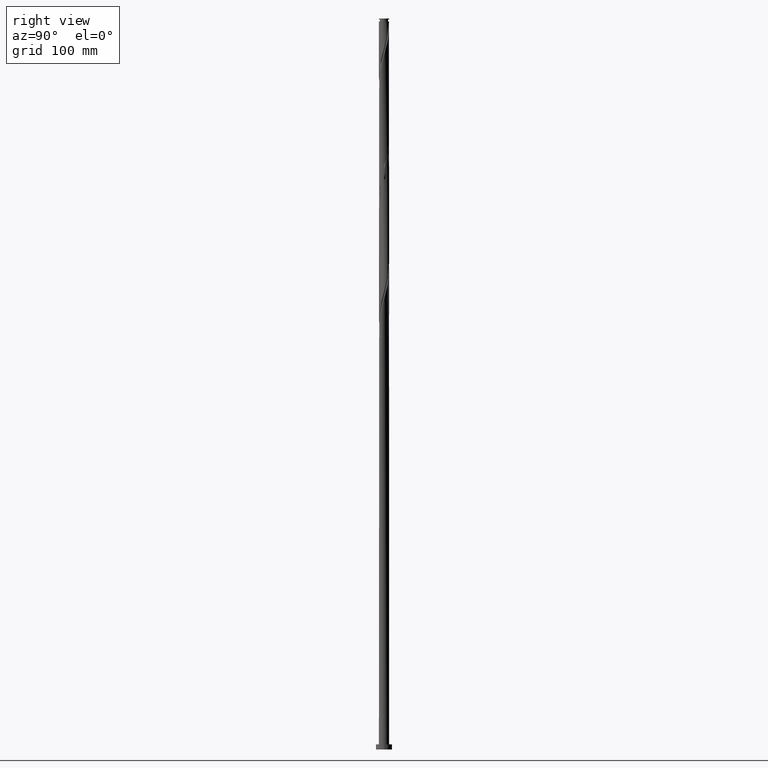
[diagram: clean part render]
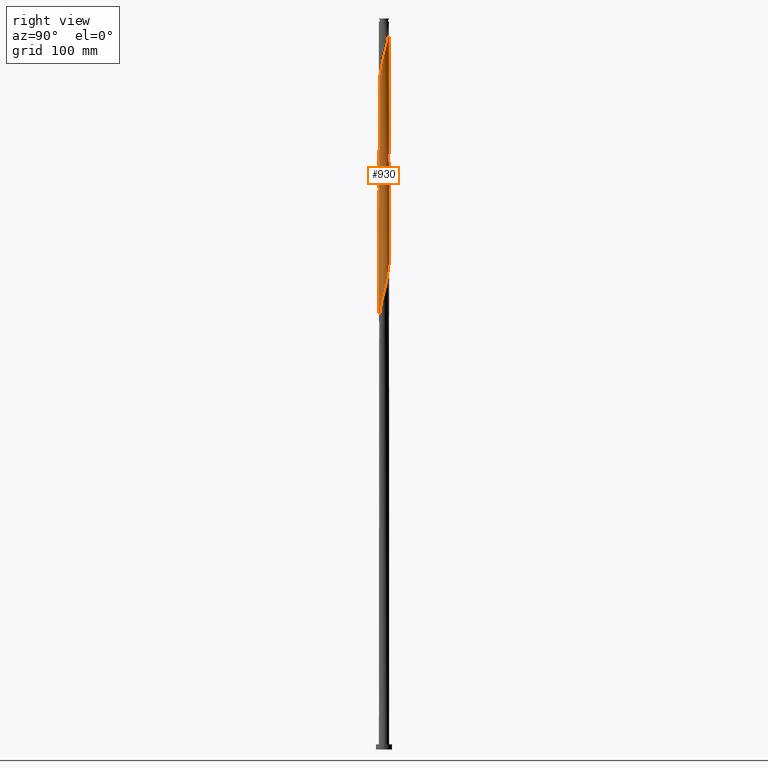
[diagram: same view with one face highlighted and labeled with its STEP entity id]
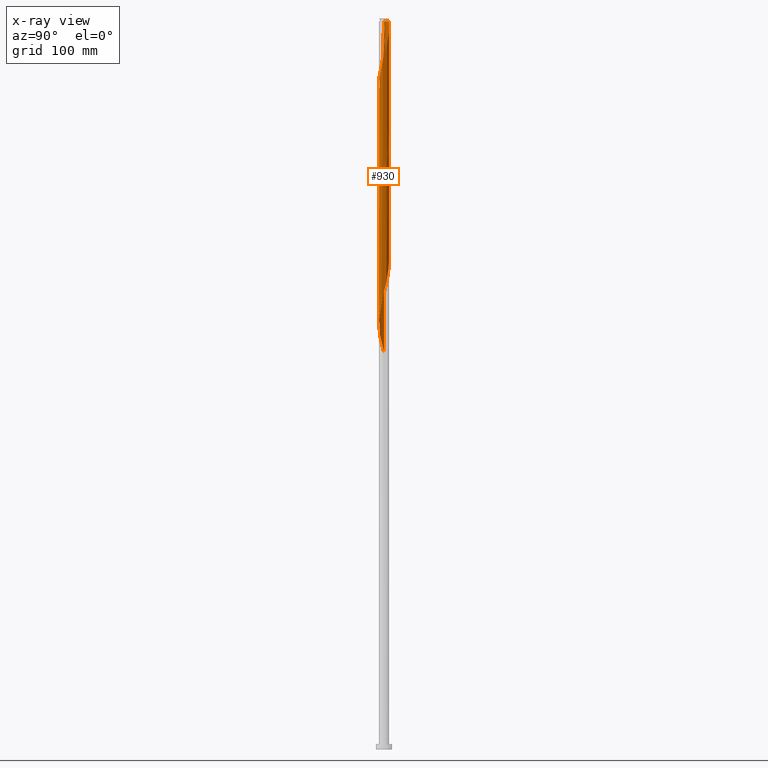
[diagram: x-ray of the same camera — body ghosted, the highlighted face saturated]
A machine part, right view. The second image highlights one B-rep face of the part: STEP entity #930.
The next image is the same camera in x-ray: the body ghosted, the highlighted face saturated — about 0% of this face is hidden behind the body in this view.
In plain terms, the highlighted cylindrical surface (bore or boss wall) has radius 7 mm, axis along (-0, -0, -1).
Its self-contained STEP definition (entity closure, byte-faithful):
#3 = CARTESIAN_POINT ( 'NONE',  ( 0.2477045896115705748, -7.017274856415677498, 585.5051222369022526 ) ) ;
#4 = VERTEX_POINT ( 'NONE', #1522 ) ;
#12 = CARTESIAN_POINT ( 'NONE',  ( -1.873218411086832624, 6.744705537261451944, 841.7551222369019115 ) ) ;
#39 = CARTESIAN_POINT ( 'NONE',  ( 3.865765209376784917, -5.835739828502641835, 766.7551222369021389 ) ) ;
#58 = CARTESIAN_POINT ( 'NONE',  ( -3.924253449303482189, -5.822691717739143513, 735.5051222369019115 ) ) ;
#59 = CARTESIAN_POINT ( 'NONE',  ( -6.969630093397091386, -0.8530887031323962644, 868.8384555702357375 ) ) ;
#69 = CARTESIAN_POINT ( 'NONE',  ( 2.448972917112380188, 6.557631558058903742, 658.4217889035686540 ) ) ;
#81 = CARTESIAN_POINT ( 'NONE',  ( 4.355531245339745006, 5.479903974602946981, 650.0884555702353964 ) ) ;
#96 = CARTESIAN_POINT ( 'NONE',  ( 6.892131023469286077, 1.342398573274904194, 631.3384555702355101 ) ) ;
#97 = CARTESIAN_POINT ( 'NONE',  ( 4.325047894464358222, 5.531497508341468361, 973.0051222369021389 ) ) ;
#110 = CARTESIAN_POINT ( 'NONE',  ( -7.017274856415677498, -0.2477045896115709911, 710.5051222369020252 ) ) ;
#111 = CARTESIAN_POINT ( 'NONE',  ( 1.392982411949278632, -6.860000000000005649, 912.5884555702351690 ) ) ;
#120 = AXIS2_PLACEMENT_3D ( 'NONE', #674, #817, #1710 ) ;
#124 = CARTESIAN_POINT ( 'NONE',  ( 6.139982148663822414, 3.406482524289223601, 639.6717889035688813 ) ) ;
#125 = CARTESIAN_POINT ( 'NONE',  ( 5.822691717739151507, 3.924253449303488850, 964.6717889035689950 ) ) ;
#136 = CARTESIAN_POINT ( 'NONE',  ( -1.342398573274906637, -6.892131023469298512, 902.1717889035688813 ) ) ;
#142 = CARTESIAN_POINT ( 'NONE',  ( -4.731082062965552559, 5.159153274858734761, 854.2551222369020252 ) ) ;
#145 = CARTESIAN_POINT ( 'NONE',  ( -6.999999999999998224, -8.478051187993811111E-15, 542.9017337756833967 ) ) ;
#172 = CARTESIAN_POINT ( 'NONE',  ( -4.355531245339744117, -5.479903974602946981, 566.7551222369019115 ) ) ;
#181 = CARTESIAN_POINT ( 'NONE',  ( -6.750369906602915471, 1.932876120766161110, 868.8384555702353964 ) ) ;
#182 = ORIENTED_EDGE ( 'NONE', *, *, #390, .F. ) ;
#185 = CARTESIAN_POINT ( 'NONE',  ( -2.965069713458597267, -6.364893209514898231, 573.0051222369021389 ) ) ;
#189 = CARTESIAN_POINT ( 'NONE',  ( 6.859999999999996767, -1.392982411949279964, 787.5884555702351690 ) ) ;
#195 = CARTESIAN_POINT ( 'NONE',  ( -6.093792463627018208, 3.444661581381039728, 862.5884555702350553 ) ) ;
#196 = ORIENTED_EDGE ( 'NONE', *, *, #1336, .F. ) ;
#225 =( BOUNDED_CURVE ( )  B_SPLINE_CURVE ( 2, ( #896, #1796, #1064, #1283, #1808, #181, #884, #523, #195, #1984, #2323, #1638, #142, #369, #730, #2162, #558, #1254, #12, #1052, #1297, #1998, #1102, #1449, #1650, #2299, #743, #1486, #345, #1240, #2138, #534, #510, #1946, #1269, #1772, #1615, #869, #695, #1437, #1960, #1785, #2311 ),
 .UNSPECIFIED., .F., .T. ) 
 B_SPLINE_CURVE_WITH_KNOTS ( ( 3, 2, 2, 2, 2, 2, 2, 2, 2, 2, 2, 2, 2, 2, 2, 2, 2, 2, 2, 2, 2, 3 ),
 ( 0.4295283537410732322, 0.4312500000000000222, 0.4375000000000000000, 0.4437499999999999778, 0.4500000000000000111, 0.4562499999999999889, 0.4625000000000000222, 0.4687500000000000000, 0.4749999999999999778, 0.4812500000000000111, 0.4874999999999999889, 0.4937500000000000222, 0.5000000000000000000, 0.5062499999999999778, 0.5124999999999999556, 0.5187500000000000444, 0.5250000000000000222, 0.5312500000000000000, 0.5374999999999999778, 0.5437499999999999556, 0.5500000000000000444, 0.5545283537410730101 ),
 .UNSPECIFIED. ) 
 CURVE ( )  GEOMETRIC_REPRESENTATION_ITEM ( )  RATIONAL_B_SPLINE_CURVE ( ( 0.9079722749903148538, 0.9083189438770251645, 0.9090909090909714552, 0.9062884852119965640, 0.9090909090909714552, 0.9062884852119965640, 0.9090909090909714552, 0.9062884852119965640, 0.9090909090909714552, 0.9062884852119965640, 0.9090909090909714552, 0.9062884852119965640, 0.9090909090909714552, 0.9062884852119965640, 0.9090909090909714552, 0.9062884852119965640, 0.9090909090909714552, 0.9062884852119965640, 0.9090909090909714552, 0.9062884852119965640, 0.9090909090909714552, 0.9062884852119965640, 0.9090909090909714552, 0.9062884852119965640, 0.9090909090909714552, 0.9062884852119965640, 0.9090909090909714552, 0.9062884852119965640, 0.9090909090909714552, 0.9062884852119965640, 0.9090909090909714552, 0.9062884852119965640, 0.9090909090909714552, 0.9062884852119965640, 0.9090909090909714552, 0.9062884852119965640, 0.9090909090909714552, 0.9062884852119965640, 0.9090909090909714552, 0.9062884852119965640, 0.9090909090909714552, 0.9070604504259429657, 0.9079722749903147427 ) ) 
 REPRESENTATION_ITEM ( '' )  );
#232 = CARTESIAN_POINT ( 'NONE',  ( 0.7950515814432358441, -6.954702939942481343, 754.2551222369019115 ) ) ;
#241 = CARTESIAN_POINT ( 'NONE',  ( 4.731082062965550783, -5.159153274858734761, 770.9217889035685403 ) ) ;
#250 = CARTESIAN_POINT ( 'NONE',  ( 7.017274856415677498, 0.2477045896115671053, 627.1717889035685403 ) ) ;
#259 = CARTESIAN_POINT ( 'NONE',  ( -6.368631099858721001, -2.905260386593992550, 720.9217889035686540 ) ) ;
#272 = CARTESIAN_POINT ( 'NONE',  ( -5.159153274858734761, -4.731082062965550783, 729.2551222369019115 ) ) ;
#273 = CARTESIAN_POINT ( 'NONE',  ( 3.444661581381042836, -6.093792463627028866, 920.9217889035685403 ) ) ;
#291 = VERTEX_POINT ( 'NONE', #1303 ) ;
#301 = CARTESIAN_POINT ( 'NONE',  ( 3.924253449303486629, 5.822691717739139072, 652.1717889035686540 ) ) ;
#302 = CARTESIAN_POINT ( 'NONE',  ( -0.7950515814432398409, -6.954702939942491113, 904.2551222369021389 ) ) ;
#321 = VERTEX_POINT ( 'NONE', #701 ) ;
#324 = CARTESIAN_POINT ( 'NONE',  ( 1.342398573274909968, 6.892131023469296736, 985.5051222369022526 ) ) ;
#325 = EDGE_CURVE ( 'NONE', #1479, #2194, #451, .T. ) ;
#338 = CARTESIAN_POINT ( 'NONE',  ( 2.905260386593992550, -6.368631099858721001, 595.9217889035686540 ) ) ;
#345 = CARTESIAN_POINT ( 'NONE',  ( 3.444661581381041948, 6.093792463627018208, 820.9217889035685403 ) ) ;
#351 = CARTESIAN_POINT ( 'NONE',  ( 6.999999999999998224, 6.448095269741771964E-15, 792.9017337756835104 ) ) ;
#360 = CARTESIAN_POINT ( 'NONE',  ( -2.448972917112378855, -6.557631558058904631, 575.0884555702353964 ) ) ;
#369 = CARTESIAN_POINT ( 'NONE',  ( -4.325047894464350229, 5.531497508341459479, 852.1717889035685403 ) ) ;
#390 = EDGE_CURVE ( 'NONE', #880, #291, #1964, .T. ) ;
#393 = CARTESIAN_POINT ( 'NONE',  ( 4.325047894464347564, -5.531497508341461256, 768.8384555702352827 ) ) ;
#404 = CARTESIAN_POINT ( 'NONE',  ( 5.137116231466755778, -4.786809041376007379, 773.0051222369022526 ) ) ;
#415 = CARTESIAN_POINT ( 'NONE',  ( 3.406482524289220937, -6.139982148663824191, 764.6717889035688813 ) ) ;
#423 = CARTESIAN_POINT ( 'NONE',  ( 5.479903974602946981, -4.355531245339744117, 775.0884555702352827 ) ) ;
#436 = CARTESIAN_POINT ( 'NONE',  ( -5.822691717739152395, -3.924253449303488406, 881.3384555702353964 ) ) ;
#445 = CARTESIAN_POINT ( 'NONE',  ( -5.479903974602946981, 4.355531245339743229, 691.7551222369019115 ) ) ;
#451 =( BOUNDED_CURVE ( )  B_SPLINE_CURVE ( 2, ( #351, #2328, #1803, #1108, #189, #917, #596, #761, #587, #1863, #423, #404, #241, #393, #39, #415, #1854, #1492, #780, #1314, #232, #962, #1836, #1355, #1686, #1149, #615, #970, #1695, #58, #787, #1030, #272, #1402, #1365, #1703, #259, #1884, #1584, #1909, #1387, #110, #474, #1416, #2093, #1216, #2228, #489, #1201, #1016, #445, #1923, #1738, #849, #1003, #2104, #987, #500, #1230, #639, #1574, #797, #2278, #2264, #1726, #1542, #69, #1750, #2061, #301, #81, #1712, #836, #1897, #666, #124, #808, #821, #652, #96, #1168, #250, #626, #1376, #1552, #2237, #458, #1184, #1562, #1272, #1259, #913, #1595, #514, #561, #734, #338, #1043, #1477, #1605, #1288, #3, #1093, #2302, #1989, #2165, #360, #185, #1462, #2315, #172, #1081, #1067, #900, #2141, #1246, #2152, #1976, #1935, #1629, #722, #1777, #698 ),
 .UNSPECIFIED., .F., .T. ) 
 B_SPLINE_CURVE_WITH_KNOTS ( ( 3, 2, 2, 2, 2, 2, 2, 2, 2, 2, 2, 2, 2, 2, 2, 2, 2, 2, 2, 2, 2, 2, 2, 2, 2, 2, 2, 2, 2, 2, 2, 2, 2, 2, 2, 2, 2, 2, 2, 2, 2, 2, 2, 2, 2, 2, 2, 2, 2, 2, 2, 2, 2, 2, 2, 2, 2, 2, 2, 2, 2, 3 ),
 ( 0.5545283537410730101, 0.5562500000000000222, 0.5625000000000000000, 0.5687499999999999778, 0.5749999999999999556, 0.5812500000000000444, 0.5875000000000000222, 0.5937500000000000000, 0.5999999999999999778, 0.6062499999999999556, 0.6125000000000000444, 0.6187500000000000222, 0.6250000000000000000, 0.6312499999999999778, 0.6374999999999999556, 0.6437500000000000444, 0.6500000000000000222, 0.6562500000000000000, 0.6624999999999999778, 0.6687499999999999556, 0.6750000000000000444, 0.6812500000000000222, 0.6875000000000000000, 0.6937499999999999778, 0.6999999999999999556, 0.7062500000000000444, 0.7125000000000000222, 0.7187500000000000000, 0.7249999999999999778, 0.7312499999999999556, 0.7375000000000000444, 0.7437500000000000222, 0.7500000000000000000, 0.7562499999999999778, 0.7624999999999999556, 0.7687500000000000444, 0.7750000000000000222, 0.7812500000000000000, 0.7874999999999999778, 0.7937499999999999556, 0.8000000000000000444, 0.8062500000000000222, 0.8125000000000000000, 0.8187499999999999778, 0.8249999999999999556, 0.8312500000000000444, 0.8375000000000000222, 0.8437500000000000000, 0.8499999999999999778, 0.8562499999999999556, 0.8625000000000000444, 0.8687500000000000222, 0.8750000000000000000, 0.8812499999999999778, 0.8874999999999999556, 0.8937500000000000444, 0.9000000000000000222, 0.9062500000000000000, 0.9124999999999999778, 0.9187499999999999556, 0.9250000000000000444, 0.9295283537410733432 ),
 .UNSPECIFIED. ) 
 CURVE ( )  GEOMETRIC_REPRESENTATION_ITEM ( )  RATIONAL_B_SPLINE_CURVE ( ( 0.9079722749903147427, 0.9083189438770250534, 0.9090909090909714552, 0.9062884852119965640, 0.9090909090909714552, 0.9062884852119965640, 0.9090909090909714552, 0.9062884852119965640, 0.9090909090909714552, 0.9062884852119965640, 0.9090909090909714552, 0.9062884852119965640, 0.9090909090909714552, 0.9062884852119965640, 0.9090909090909714552, 0.9062884852119965640, 0.9090909090909714552, 0.9062884852119965640, 0.9090909090909714552, 0.9062884852119965640, 0.9090909090909714552, 0.9062884852119965640, 0.9090909090909714552, 0.9062884852119965640, 0.9090909090909714552, 0.9062884852119965640, 0.9090909090909714552, 0.9062884852119965640, 0.9090909090909714552, 0.9062884852119965640, 0.9090909090909714552, 0.9062884852119965640, 0.9090909090909714552, 0.9062884852119965640, 0.9090909090909714552, 0.9062884852119965640, 0.9090909090909714552, 0.9062884852119965640, 0.9090909090909714552, 0.9062884852119965640, 0.9090909090909714552, 0.9062884852119965640, 0.9090909090909714552, 0.9062884852119965640, 0.9090909090909714552, 0.9062884852119965640, 0.9090909090909714552, 0.9062884852119965640, 0.9090909090909714552, 0.9062884852119965640, 0.9090909090909714552, 0.9062884852119965640, 0.9090909090909714552, 0.9062884852119965640, 0.9090909090909714552, 0.9062884852119965640, 0.9090909090909714552, 0.9062884852119965640, 0.9090909090909714552, 0.9062884852119965640, 0.9090909090909714552, 0.9062884852119965640, 0.9090909090909714552, 0.9062884852119965640, 0.9090909090909714552, 0.9062884852119965640, 0.9090909090909714552, 0.9062884852119965640, 0.9090909090909714552, 0.9062884852119965640, 0.9090909090909714552, 0.9062884852119965640, 0.9090909090909714552, 0.9062884852119965640, 0.9090909090909714552, 0.9062884852119965640, 0.9090909090909714552, 0.9062884852119965640, 0.9090909090909714552, 0.9062884852119965640, 0.9090909090909714552, 0.9062884852119965640, 0.9090909090909714552, 0.9062884852119965640, 0.9090909090909714552, 0.9062884852119965640, 0.9090909090909714552, 0.9062884852119965640, 0.9090909090909714552, 0.9062884852119965640, 0.9090909090909714552, 0.9062884852119965640, 0.9090909090909714552, 0.9062884852119965640, 0.9090909090909714552, 0.9062884852119965640, 0.9090909090909714552, 0.9062884852119965640, 0.9090909090909714552, 0.9062884852119965640, 0.9090909090909714552, 0.9062884852119965640, 0.9090909090909714552, 0.9062884852119965640, 0.9090909090909714552, 0.9062884852119965640, 0.9090909090909714552, 0.9062884852119965640, 0.9090909090909714552, 0.9062884852119965640, 0.9090909090909714552, 0.9062884852119965640, 0.9090909090909714552, 0.9062884852119965640, 0.9090909090909714552, 0.9062884852119965640, 0.9090909090909714552, 0.9062884852119965640, 0.9090909090909714552, 0.9062884852119965640, 0.9090909090909714552, 0.9070604504259427436, 0.9079722749903147427 ) ) 
 REPRESENTATION_ITEM ( '' )  );
#458 = CARTESIAN_POINT ( 'NONE',  ( 6.557631558058903742, -2.448972917112380188, 616.7551222369021389 ) ) ;
#463 = CARTESIAN_POINT ( 'NONE',  ( -7.000000000000000888, 0.000000000000000000, 1000.000000000000000 ) ) ;
#474 = CARTESIAN_POINT ( 'NONE',  ( -6.993452474906375116, 0.3026920567604128309, 708.4217889035687676 ) ) ;
#489 = CARTESIAN_POINT ( 'NONE',  ( -6.364893209514898231, 2.965069713458597267, 698.0051222369020252 ) ) ;
#490 = CARTESIAN_POINT ( 'NONE',  ( 5.531497508341468361, -4.325047894464359999, 931.3384555702356238 ) ) ;
#500 = CARTESIAN_POINT ( 'NONE',  ( -2.404038248898764163, 6.597280051053622252, 677.1717889035687676 ) ) ;
#501 = CARTESIAN_POINT ( 'NONE',  ( 3.406482524289232927, 6.139982148663830408, 977.1717889035689950 ) ) ;
#510 = CARTESIAN_POINT ( 'NONE',  ( 5.159153274858735649, 4.731082062965550783, 812.5884555702352827 ) ) ;
#514 = CARTESIAN_POINT ( 'NONE',  ( 4.325047894464347564, -5.531497508341461256, 602.1717889035685403 ) ) ;
#515 = CARTESIAN_POINT ( 'NONE',  ( 5.479903974602956751, 4.355531245339750335, 966.7551222369017978 ) ) ;
#523 = CARTESIAN_POINT ( 'NONE',  ( -6.364893209514898231, 2.965069713458597267, 864.6717889035686540 ) ) ;
#534 = CARTESIAN_POINT ( 'NONE',  ( 4.786809041376007379, 5.137116231466755778, 814.6717889035689950 ) ) ;
#558 = CARTESIAN_POINT ( 'NONE',  ( -2.905260386593993438, 6.368631099858721001, 845.9217889035685403 ) ) ;
#561 = CARTESIAN_POINT ( 'NONE',  ( 3.865765209376784917, -5.835739828502641835, 600.0884555702352827 ) ) ;
#563 = ORIENTED_EDGE ( 'NONE', *, *, #1466, .T. ) ;
#587 = CARTESIAN_POINT ( 'NONE',  ( 6.093792463627018208, -3.444661581381040616, 779.2551222369019115 ) ) ;
#596 = CARTESIAN_POINT ( 'NONE',  ( 6.557631558058903742, -2.448972917112380188, 783.4217889035685403 ) ) ;
#615 = CARTESIAN_POINT ( 'NONE',  ( -2.448972917112378855, -6.557631558058904631, 741.7551222369020252 ) ) ;
#620 = CARTESIAN_POINT ( 'NONE',  ( 0.000000000000000000, 0.000000000000000000, 995.9217889035687676 ) ) ;
#626 = CARTESIAN_POINT ( 'NONE',  ( 6.993452474906375116, -0.3026920567604137191, 625.0884555702353964 ) ) ;
#627 = CARTESIAN_POINT ( 'NONE',  ( -6.860000000000005649, -1.392982411949279076, 870.9217889035687676 ) ) ;
#630 = DIRECTION ( 'NONE',  ( -0.000000000000000000, -0.000000000000000000, -1.000000000000000000 ) ) ;
#639 = CARTESIAN_POINT ( 'NONE',  ( -1.342398573274901974, 6.892131023469287854, 673.0051222369019115 ) ) ;
#652 = CARTESIAN_POINT ( 'NONE',  ( 6.744705537261451944, 1.873218411086831958, 633.4217889035685403 ) ) ;
#653 = CARTESIAN_POINT ( 'NONE',  ( 6.139982148663832184, -3.406482524289232927, 935.5051222369021389 ) ) ;
#666 = CARTESIAN_POINT ( 'NONE',  ( 5.835739828502640947, 3.865765209376784917, 641.7551222369017978 ) ) ;
#667 = CARTESIAN_POINT ( 'NONE',  ( 6.750369906602927017, 1.932876120766165107, 956.3384555702353964 ) ) ;
#674 = CARTESIAN_POINT ( 'NONE',  ( 0.000000000000000000, 0.000000000000000000, 1000.000000000000000 ) ) ;
#677 = CARTESIAN_POINT ( 'NONE',  ( -0.2477045896115740997, -7.017274856415686379, 906.3384555702357375 ) ) ;
#684 = CYLINDRICAL_SURFACE ( 'NONE', #120, 7.000000000000000888 ) ;
#688 = CARTESIAN_POINT ( 'NONE',  ( 4.786809041376016260, -5.137116231466766436, 927.1717889035688813 ) ) ;
#695 = CARTESIAN_POINT ( 'NONE',  ( 6.744705537261451944, 1.873218411086831958, 800.0884555702353964 ) ) ;
#698 = CARTESIAN_POINT ( 'NONE',  ( -6.999999999999998224, -8.478051187993811111E-15, 542.9017337756833967 ) ) ;
#699 = CARTESIAN_POINT ( 'NONE',  ( 6.368631099858727218, -2.905260386593999211, 937.5884555702350553 ) ) ;
#701 = CARTESIAN_POINT ( 'NONE',  ( -7.000000000000009770, -1.895620600132406079E-15, 865.6085106981207673 ) ) ;
#722 = CARTESIAN_POINT ( 'NONE',  ( -6.954702939942481343, -0.7950515814432361772, 545.9217889035688813 ) ) ;
#730 = CARTESIAN_POINT ( 'NONE',  ( -3.865765209376786249, 5.835739828502640947, 850.0884555702352827 ) ) ;
#734 = CARTESIAN_POINT ( 'NONE',  ( 3.406482524289220937, -6.139982148663824191, 598.0051222369020252 ) ) ;
#736 = EDGE_LOOP ( 'NONE', ( #182, #563, #1917, #1177, #2127, #196, #1823, #1508 ) ) ;
#743 = CARTESIAN_POINT ( 'NONE',  ( 2.448972917112380188, 6.557631558058903742, 825.0884555702352827 ) ) ;
#761 = CARTESIAN_POINT ( 'NONE',  ( 6.364893209514898231, -2.965069713458595047, 781.3384555702355101 ) ) ;
#780 = CARTESIAN_POINT ( 'NONE',  ( 1.873218411086832402, -6.744705537261451944, 758.4217889035684266 ) ) ;
#787 = CARTESIAN_POINT ( 'NONE',  ( -4.355531245339744117, -5.479903974602946981, 733.4217889035686540 ) ) ;
#797 = CARTESIAN_POINT ( 'NONE',  ( -0.2477045896115717127, 7.017274856415675721, 668.8384555702353964 ) ) ;
#798 = CARTESIAN_POINT ( 'NONE',  ( -4.325047894464359111, -5.531497508341468361, 889.6717889035688813 ) ) ;
#808 = CARTESIAN_POINT ( 'NONE',  ( 6.368631099858721001, 2.905260386593992106, 637.5884555702352827 ) ) ;
#811 = DIRECTION ( 'NONE',  ( -0.000000000000000000, -0.000000000000000000, -1.000000000000000000 ) ) ;
#817 = DIRECTION ( 'NONE',  ( -0.000000000000000000, -0.000000000000000000, -1.000000000000000000 ) ) ;
#821 = CARTESIAN_POINT ( 'NONE',  ( 6.597280051053623140, 2.404038248898761054, 635.5051222369019115 ) ) ;
#822 = CARTESIAN_POINT ( 'NONE',  ( 0.7950515814432407291, 6.954702939942491113, 987.5884555702351690 ) ) ;
#836 = CARTESIAN_POINT ( 'NONE',  ( 5.159153274858735649, 4.731082062965550783, 645.9217889035687676 ) ) ;
#837 = CARTESIAN_POINT ( 'NONE',  ( 2.448972917112380188, -6.557631558058916177, 916.7551222369017978 ) ) ;
#849 = CARTESIAN_POINT ( 'NONE',  ( -4.325047894464350229, 5.531497508341459479, 685.5051222369020252 ) ) ;
#850 = CARTESIAN_POINT ( 'NONE',  ( 1.873218411086838842, 6.744705537261459938, 983.4217889035684266 ) ) ;
#861 = CARTESIAN_POINT ( 'NONE',  ( 1.932876120766162442, -6.750369906602927017, 914.6717889035688813 ) ) ;
#869 = CARTESIAN_POINT ( 'NONE',  ( 6.597280051053623140, 2.404038248898761054, 802.1717889035686540 ) ) ;
#880 = VERTEX_POINT ( 'NONE', #2159 ) ;
#884 = CARTESIAN_POINT ( 'NONE',  ( -6.557631558058905519, 2.448972917112378855, 866.7551222369020252 ) ) ;
#896 = CARTESIAN_POINT ( 'NONE',  ( -6.999999999999998224, 3.955428811299929058E-15, 876.2350671090165406 ) ) ;
#900 = CARTESIAN_POINT ( 'NONE',  ( -5.531497508341460367, -4.325047894464350229, 560.5051222369020252 ) ) ;
#913 = CARTESIAN_POINT ( 'NONE',  ( 5.137116231466755778, -4.786809041376007379, 606.3384555702351690 ) ) ;
#917 = CARTESIAN_POINT ( 'NONE',  ( 6.750369906602914583, -1.932876120766165107, 785.5051222369017978 ) ) ;
#930 = ADVANCED_FACE ( 'NONE', ( #1373 ), #684, .T. ) ;
#933 = CARTESIAN_POINT ( 'NONE',  ( 7.000000000000000888, 8.572527594031474176E-16, 995.9217889035691087 ) ) ;
#962 = CARTESIAN_POINT ( 'NONE',  ( 0.2477045896115705748, -7.017274856415677498, 752.1717889035688813 ) ) ;
#970 = CARTESIAN_POINT ( 'NONE',  ( -2.965069713458597267, -6.364893209514898231, 739.6717889035688813 ) ) ;
#971 = CARTESIAN_POINT ( 'NONE',  ( -7.000000000000010658, -1.895620600132406079E-15, 865.6085106981207673 ) ) ;
#981 = CARTESIAN_POINT ( 'NONE',  ( -5.137116231466766436, -4.786809041376016260, 885.5051222369025936 ) ) ;
#987 = CARTESIAN_POINT ( 'NONE',  ( -2.905260386593993438, 6.368631099858721001, 679.2551222369022526 ) ) ;
#1003 = CARTESIAN_POINT ( 'NONE',  ( -3.865765209376786249, 5.835739828502640947, 683.4217889035686540 ) ) ;
#1004 = CARTESIAN_POINT ( 'NONE',  ( 6.892131023469296736, -1.342398573274909523, 943.8384555702356238 ) ) ;
#1016 = CARTESIAN_POINT ( 'NONE',  ( -5.822691717739143513, 3.924253449303482189, 693.8384555702351690 ) ) ;
#1030 = CARTESIAN_POINT ( 'NONE',  ( -4.786809041376009155, -5.137116231466754002, 731.3384555702355101 ) ) ;
#1031 = CARTESIAN_POINT ( 'NONE',  ( -1.873218411086838175, -6.744705537261459938, 900.0884555702351690 ) ) ;
#1043 = CARTESIAN_POINT ( 'NONE',  ( 2.404038248898763275, -6.597280051053622252, 593.8384555702352827 ) ) ;
#1044 = CARTESIAN_POINT ( 'NONE',  ( -2.404038248898770824, -6.597280051053631134, 898.0051222369023662 ) ) ;
#1052 = CARTESIAN_POINT ( 'NONE',  ( -1.342398573274901974, 6.892131023469287854, 839.6717889035689950 ) ) ;
#1055 = CARTESIAN_POINT ( 'NONE',  ( 2.905260386593999655, 6.368631099858727218, 979.2551222369019115 ) ) ;
#1064 = CARTESIAN_POINT ( 'NONE',  ( -6.993452474906375116, 0.3026920567604128309, 875.0884555702351690 ) ) ;
#1067 = CARTESIAN_POINT ( 'NONE',  ( -5.159153274858734761, -4.731082062965550783, 562.5884555702353964 ) ) ;
#1081 = CARTESIAN_POINT ( 'NONE',  ( -4.786809041376009155, -5.137116231466754002, 564.6717889035688813 ) ) ;
#1093 = CARTESIAN_POINT ( 'NONE',  ( -0.3026920567604135526, -6.993452474906375116, 583.4217889035686540 ) ) ;
#1102 = CARTESIAN_POINT ( 'NONE',  ( 0.3026920567604124424, 6.993452474906375116, 833.4217889035685403 ) ) ;
#1108 = CARTESIAN_POINT ( 'NONE',  ( 6.969630093397078063, -0.8530887031323944880, 789.6717889035685403 ) ) ;
#1113 = LINE ( 'NONE', #2008, #1507 ) ;
#1149 = CARTESIAN_POINT ( 'NONE',  ( -1.932876120766161776, -6.750369906602915471, 743.8384555702352827 ) ) ;
#1168 = CARTESIAN_POINT ( 'NONE',  ( 6.954702939942481343, 0.7950515814432354000, 629.2551222369017978 ) ) ;
#1169 = CARTESIAN_POINT ( 'NONE',  ( -6.993452474906387550, -0.3026920567604113876, 866.7551222369019115 ) ) ;
#1177 = ORIENTED_EDGE ( 'NONE', *, *, #1498, .T. ) ;
#1184 = CARTESIAN_POINT ( 'NONE',  ( 6.364893209514898231, -2.965069713458595047, 614.6717889035687676 ) ) ;
#1191 = DIRECTION ( 'NONE',  ( -0.000000000000000000, -0.000000000000000000, -1.000000000000000000 ) ) ;
#1201 = CARTESIAN_POINT ( 'NONE',  ( -6.093792463627018208, 3.444661581381039728, 695.9217889035685403 ) ) ;
#1216 = CARTESIAN_POINT ( 'NONE',  ( -6.750369906602915471, 1.932876120766161110, 702.1717889035685403 ) ) ;
#1217 = CARTESIAN_POINT ( 'NONE',  ( 6.954702939942491113, -0.7950515814432398409, 945.9217889035685403 ) ) ;
#1230 = CARTESIAN_POINT ( 'NONE',  ( -1.873218411086832624, 6.744705537261451944, 675.0884555702352827 ) ) ;
#1231 = CARTESIAN_POINT ( 'NONE',  ( 0.2477045896115715462, 7.017274856415688156, 989.6717889035689950 ) ) ;
#1240 = CARTESIAN_POINT ( 'NONE',  ( 3.924253449303486629, 5.822691717739139072, 818.8384555702351690 ) ) ;
#1246 = CARTESIAN_POINT ( 'NONE',  ( -6.139982148663823303, -3.406482524289220937, 556.3384555702352827 ) ) ;
#1247 = CARTESIAN_POINT ( 'NONE',  ( 2.965069713458599931, -6.364893209514909778, 918.8384555702355101 ) ) ;
#1254 = CARTESIAN_POINT ( 'NONE',  ( -2.404038248898764163, 6.597280051053622252, 843.8384555702352827 ) ) ;
#1259 = CARTESIAN_POINT ( 'NONE',  ( 5.479903974602946981, -4.355531245339744117, 608.4217889035687676 ) ) ;
#1269 = CARTESIAN_POINT ( 'NONE',  ( 5.835739828502640947, 3.865765209376784917, 808.4217889035687676 ) ) ;
#1272 = CARTESIAN_POINT ( 'NONE',  ( 5.822691717739139072, -3.924253449303486629, 610.5051222369019115 ) ) ;
#1283 = CARTESIAN_POINT ( 'NONE',  ( -6.969630093397078063, 0.8530887031323968195, 873.0051222369020252 ) ) ;
#1288 = CARTESIAN_POINT ( 'NONE',  ( 0.7950515814432358441, -6.954702939942481343, 587.5884555702355101 ) ) ;
#1296 = EDGE_CURVE ( 'NONE', #291, #1479, #225, .T. ) ;
#1297 = CARTESIAN_POINT ( 'NONE',  ( -0.7950515814432368433, 6.954702939942481343, 837.5884555702351690 ) ) ;
#1303 = CARTESIAN_POINT ( 'NONE',  ( -6.999999999999998224, 3.955428811299929058E-15, 876.2350671090165406 ) ) ;
#1314 = CARTESIAN_POINT ( 'NONE',  ( 1.342398573274901308, -6.892131023469288742, 756.3384555702353964 ) ) ;
#1336 = EDGE_CURVE ( 'NONE', #1743, #1479, #1113, .T. ) ;
#1351 =( BOUNDED_CURVE ( )  B_SPLINE_CURVE ( 2, ( #971, #1696, #1169, #59, #627, #1533, #1356, #2217, #2051, #436, #1874, #981, #1704, #798, #1543, #1585, #1764, #1044, #1031, #136, #302, #677, #1596, #1575, #111, #861, #837, #1247, #273, #2279, #2291, #688, #1778, #490, #1417, #653, #699, #2105, #1751, #1004, #1217, #1727, #1428, #1441, #2265, #667, #2117, #1403, #1563, #125, #515, #1951, #2131, #97, #2094, #501, #1055, #1924, #850, #324, #822, #1231, #1739, #1606, #1936 ),
 .UNSPECIFIED., .F., .T. ) 
 B_SPLINE_CURVE_WITH_KNOTS ( ( 3, 2, 2, 2, 2, 2, 2, 2, 2, 2, 2, 2, 2, 2, 2, 2, 2, 2, 2, 2, 2, 2, 2, 2, 2, 2, 2, 2, 2, 2, 2, 2, 3 ),
 ( 0.5545283537410736763, 0.5562500000000000222, 0.5625000000000000000, 0.5687499999999999778, 0.5749999999999999556, 0.5812500000000000444, 0.5875000000000000222, 0.5937500000000000000, 0.5999999999999999778, 0.6062499999999999556, 0.6125000000000000444, 0.6187500000000000222, 0.6250000000000000000, 0.6312499999999999778, 0.6374999999999999556, 0.6437500000000000444, 0.6500000000000000222, 0.6562500000000000000, 0.6624999999999999778, 0.6687499999999999556, 0.6750000000000000444, 0.6812500000000000222, 0.6875000000000000000, 0.6937499999999999778, 0.6999999999999999556, 0.7062500000000000444, 0.7125000000000000222, 0.7187500000000000000, 0.7249999999999999778, 0.7312499999999999556, 0.7375000000000000444, 0.7437500000000000222, 0.7500000000000000000 ),
 .UNSPECIFIED. ) 
 CURVE ( )  GEOMETRIC_REPRESENTATION_ITEM ( )  RATIONAL_B_SPLINE_CURVE ( ( 0.9079722749903211820, 0.9083189438770316038, 0.9090909090909777834, 0.9062884852120027812, 0.9090909090909777834, 0.9062884852120027812, 0.9090909090909777834, 0.9062884852120027812, 0.9090909090909777834, 0.9062884852120027812, 0.9090909090909777834, 0.9062884852120027812, 0.9090909090909777834, 0.9062884852120027812, 0.9090909090909777834, 0.9062884852120027812, 0.9090909090909777834, 0.9062884852120027812, 0.9090909090909777834, 0.9062884852120027812, 0.9090909090909777834, 0.9062884852120027812, 0.9090909090909777834, 0.9062884852120027812, 0.9090909090909777834, 0.9062884852120027812, 0.9090909090909777834, 0.9062884852120027812, 0.9090909090909777834, 0.9062884852120027812, 0.9090909090909777834, 0.9062884852120027812, 0.9090909090909777834, 0.9062884852120027812, 0.9090909090909777834, 0.9062884852120027812, 0.9090909090909777834, 0.9062884852120027812, 0.9090909090909777834, 0.9062884852120027812, 0.9090909090909777834, 0.9062884852120027812, 0.9090909090909777834, 0.9062884852120027812, 0.9090909090909777834, 0.9062884852120027812, 0.9090909090909777834, 0.9062884852120027812, 0.9090909090909777834, 0.9062884852120027812, 0.9090909090909777834, 0.9062884852120027812, 0.9090909090909777834, 0.9062884852120027812, 0.9090909090909777834, 0.9062884852120027812, 0.9090909090909777834, 0.9062884852120027812, 0.9090909090909777834, 0.9062884852120027812, 0.9090909090909777834, 0.9062884852120027812, 0.9090909090909777834, 0.9062884852120027812, 0.9090909090909777834 ) ) 
 REPRESENTATION_ITEM ( '' )  );
#1355 = CARTESIAN_POINT ( 'NONE',  ( -0.8530887031323972636, -6.969630093397078063, 748.0051222369021389 ) ) ;
#1356 = CARTESIAN_POINT ( 'NONE',  ( -6.557631558058916177, -2.448972917112380632, 875.0884555702352827 ) ) ;
#1365 = CARTESIAN_POINT ( 'NONE',  ( -5.835739828502640059, -3.865765209376784917, 725.0884555702353964 ) ) ;
#1369 = DIRECTION ( 'NONE',  ( -1.000000000000000000, 0.000000000000000000, 0.000000000000000000 ) ) ;
#1373 = FACE_OUTER_BOUND ( 'NONE', #736, .T. ) ;
#1376 = CARTESIAN_POINT ( 'NONE',  ( 6.969630093397078063, -0.8530887031323944880, 623.0051222369020252 ) ) ;
#1379 = DIRECTION ( 'NONE',  ( -0.000000000000000000, -0.000000000000000000, -1.000000000000000000 ) ) ;
#1387 = CARTESIAN_POINT ( 'NONE',  ( -6.954702939942481343, -0.7950515814432361772, 712.5884555702353964 ) ) ;
#1402 = CARTESIAN_POINT ( 'NONE',  ( -5.531497508341460367, -4.325047894464350229, 727.1717889035685403 ) ) ;
#1403 = CARTESIAN_POINT ( 'NONE',  ( 6.364893209514913330, 2.965069713458597267, 960.5051222369023662 ) ) ;
#1416 = CARTESIAN_POINT ( 'NONE',  ( -6.969630093397078063, 0.8530887031323968195, 706.3384555702352827 ) ) ;
#1417 = CARTESIAN_POINT ( 'NONE',  ( 5.835739828502648940, -3.865765209376792022, 933.4217889035684266 ) ) ;
#1428 = CARTESIAN_POINT ( 'NONE',  ( 6.993452474906387550, 0.3026920567604105550, 950.0884555702351690 ) ) ;
#1437 = CARTESIAN_POINT ( 'NONE',  ( 6.892131023469286077, 1.342398573274904194, 798.0051222369020252 ) ) ;
#1441 = CARTESIAN_POINT ( 'NONE',  ( 6.969630093397093162, 0.8530887031323927117, 952.1717889035689950 ) ) ;
#1449 = CARTESIAN_POINT ( 'NONE',  ( 0.8530887031323962644, 6.969630093397078063, 831.3384555702355101 ) ) ;
#1462 = CARTESIAN_POINT ( 'NONE',  ( -3.444661581381040616, -6.093792463627018208, 570.9217889035685403 ) ) ;
#1466 = EDGE_CURVE ( 'NONE', #880, #4, #1709, .T. ) ;
#1471 = VECTOR ( 'NONE', #630, 1000.000000000000000 ) ;
#1477 = CARTESIAN_POINT ( 'NONE',  ( 1.873218411086832402, -6.744705537261451944, 591.7551222369021389 ) ) ;
#1479 = VERTEX_POINT ( 'NONE', #2045 ) ;
#1486 = CARTESIAN_POINT ( 'NONE',  ( 2.965069713458595047, 6.364893209514898231, 823.0051222369023662 ) ) ;
#1492 = CARTESIAN_POINT ( 'NONE',  ( 2.404038248898763275, -6.597280051053622252, 760.5051222369019115 ) ) ;
#1498 = EDGE_CURVE ( 'NONE', #321, #2194, #2231, .T. ) ;
#1507 = VECTOR ( 'NONE', #1379, 1000.000000000000000 ) ;
#1508 = ORIENTED_EDGE ( 'NONE', *, *, #1296, .F. ) ;
#1522 = CARTESIAN_POINT ( 'NONE',  ( -1.392982411949306387, 6.859999999999900844, 995.9217889035691087 ) ) ;
#1533 = CARTESIAN_POINT ( 'NONE',  ( -6.750369906602927017, -1.932876120766162664, 873.0051222369022526 ) ) ;
#1542 = CARTESIAN_POINT ( 'NONE',  ( 1.932876120766165773, 6.750369906602914583, 660.5051222369020252 ) ) ;
#1543 = CARTESIAN_POINT ( 'NONE',  ( -3.865765209376792022, -5.835739828502648940, 891.7551222369020252 ) ) ;
#1552 = CARTESIAN_POINT ( 'NONE',  ( 6.859999999999996767, -1.392982411949279964, 620.9217889035687676 ) ) ;
#1562 = CARTESIAN_POINT ( 'NONE',  ( 6.093792463627018208, -3.444661581381040616, 612.5884555702351690 ) ) ;
#1563 = CARTESIAN_POINT ( 'NONE',  ( 6.093792463627028866, 3.444661581381042392, 962.5884555702352827 ) ) ;
#1574 = CARTESIAN_POINT ( 'NONE',  ( -0.7950515814432368433, 6.954702939942481343, 670.9217889035685403 ) ) ;
#1575 = CARTESIAN_POINT ( 'NONE',  ( 0.8530887031323957093, -6.969630093397091386, 910.5051222369021389 ) ) ;
#1584 = CARTESIAN_POINT ( 'NONE',  ( -6.744705537261451944, -1.873218411086832624, 716.7551222369017978 ) ) ;
#1585 = CARTESIAN_POINT ( 'NONE',  ( -3.406482524289229818, -6.139982148663833961, 893.8384555702356238 ) ) ;
#1595 = CARTESIAN_POINT ( 'NONE',  ( 4.731082062965550783, -5.159153274858734761, 604.2551222369021389 ) ) ;
#1596 = CARTESIAN_POINT ( 'NONE',  ( 0.3026920567604109435, -6.993452474906386662, 908.4217889035686540 ) ) ;
#1605 = CARTESIAN_POINT ( 'NONE',  ( 1.342398573274901308, -6.892131023469288742, 589.6717889035687676 ) ) ;
#1606 = CARTESIAN_POINT ( 'NONE',  ( -0.8530887031323921565, 6.969630093397093162, 993.8384555702355101 ) ) ;
#1615 = CARTESIAN_POINT ( 'NONE',  ( 6.368631099858721001, 2.905260386593992106, 804.2551222369017978 ) ) ;
#1629 = CARTESIAN_POINT ( 'NONE',  ( -6.892131023469287854, -1.342398573274901530, 548.0051222369020252 ) ) ;
#1638 = CARTESIAN_POINT ( 'NONE',  ( -5.137116231466754002, 4.786809041376009155, 856.3384555702353964 ) ) ;
#1650 = CARTESIAN_POINT ( 'NONE',  ( 1.392982411949280408, 6.859999999999996767, 829.2551222369020252 ) ) ;
#1686 = CARTESIAN_POINT ( 'NONE',  ( -1.392982411949279742, -6.859999999999996767, 745.9217889035686540 ) ) ;
#1695 = CARTESIAN_POINT ( 'NONE',  ( -3.444661581381040616, -6.093792463627018208, 737.5884555702352827 ) ) ;
#1696 = CARTESIAN_POINT ( 'NONE',  ( -7.000000000000008882, -0.1514168430644841357, 866.1825230081871041 ) ) ;
#1703 = CARTESIAN_POINT ( 'NONE',  ( -6.139982148663823303, -3.406482524289220937, 723.0051222369021389 ) ) ;
#1704 = CARTESIAN_POINT ( 'NONE',  ( -4.731082062965558777, -5.159153274858739202, 887.5884555702353964 ) ) ;
#1709 = CIRCLE ( 'NONE', #1858, 6.999999999999891642 ) ;
#1710 = DIRECTION ( 'NONE',  ( -1.000000000000000000, 0.000000000000000000, 0.000000000000000000 ) ) ;
#1712 = CARTESIAN_POINT ( 'NONE',  ( 4.786809041376007379, 5.137116231466755778, 648.0051222369021389 ) ) ;
#1726 = CARTESIAN_POINT ( 'NONE',  ( 1.392982411949280408, 6.859999999999996767, 662.5884555702353964 ) ) ;
#1727 = CARTESIAN_POINT ( 'NONE',  ( 7.017274856415688156, -0.2477045896115713242, 948.0051222369021389 ) ) ;
#1738 = CARTESIAN_POINT ( 'NONE',  ( -4.731082062965552559, 5.159153274858734761, 687.5884555702351690 ) ) ;
#1739 = CARTESIAN_POINT ( 'NONE',  ( -0.3026920567604101664, 6.993452474906387550, 991.7551222369020252 ) ) ;
#1743 = VERTEX_POINT ( 'NONE', #933 ) ;
#1750 = CARTESIAN_POINT ( 'NONE',  ( 2.965069713458595047, 6.364893209514898231, 656.3384555702355101 ) ) ;
#1751 = CARTESIAN_POINT ( 'NONE',  ( 6.744705537261459938, -1.873218411086838620, 941.7551222369020252 ) ) ;
#1764 = CARTESIAN_POINT ( 'NONE',  ( -2.905260386593999211, -6.368631099858727218, 895.9217889035686540 ) ) ;
#1772 = CARTESIAN_POINT ( 'NONE',  ( 6.139982148663822414, 3.406482524289223601, 806.3384555702356238 ) ) ;
#1777 = CARTESIAN_POINT ( 'NONE',  ( -6.999999999999998224, -0.3988161621250284061, 544.4136222940283005 ) ) ;
#1778 = CARTESIAN_POINT ( 'NONE',  ( 5.159153274858739202, -4.731082062965558777, 929.2551222369019115 ) ) ;
#1785 = CARTESIAN_POINT ( 'NONE',  ( 6.999999999999993783, 0.3988161621250544409, 794.4136222940280732 ) ) ;
#1796 = CARTESIAN_POINT ( 'NONE',  ( -6.999999999999997335, 0.1514168430644481367, 875.6610547989502038 ) ) ;
#1803 = CARTESIAN_POINT ( 'NONE',  ( 6.993452474906375116, -0.3026920567604137191, 791.7551222369020252 ) ) ;
#1808 = CARTESIAN_POINT ( 'NONE',  ( -6.859999999999996767, 1.392982411949279298, 870.9217889035684266 ) ) ;
#1823 = ORIENTED_EDGE ( 'NONE', *, *, #1336, .T. ) ;
#1836 = CARTESIAN_POINT ( 'NONE',  ( -0.3026920567604135526, -6.993452474906375116, 750.0884555702351690 ) ) ;
#1854 = CARTESIAN_POINT ( 'NONE',  ( 2.905260386593992550, -6.368631099858721001, 762.5884555702352827 ) ) ;
#1858 = AXIS2_PLACEMENT_3D ( 'NONE', #620, #811, #1369 ) ;
#1863 = CARTESIAN_POINT ( 'NONE',  ( 5.822691717739139072, -3.924253449303486629, 777.1717889035686540 ) ) ;
#1874 = CARTESIAN_POINT ( 'NONE',  ( -5.479903974602956751, -4.355531245339752111, 883.4217889035685403 ) ) ;
#1884 = CARTESIAN_POINT ( 'NONE',  ( -6.597280051053622252, -2.404038248898764163, 718.8384555702352827 ) ) ;
#1897 = CARTESIAN_POINT ( 'NONE',  ( 5.531497508341461256, 4.325047894464347564, 643.8384555702353964 ) ) ;
#1909 = CARTESIAN_POINT ( 'NONE',  ( -6.892131023469287854, -1.342398573274901530, 714.6717889035686540 ) ) ;
#1917 = ORIENTED_EDGE ( 'NONE', *, *, #2174, .F. ) ;
#1923 = CARTESIAN_POINT ( 'NONE',  ( -5.137116231466754002, 4.786809041376009155, 689.6717889035687676 ) ) ;
#1924 = CARTESIAN_POINT ( 'NONE',  ( 2.404038248898769936, 6.597280051053631134, 981.3384555702357375 ) ) ;
#1935 = CARTESIAN_POINT ( 'NONE',  ( -6.744705537261451944, -1.873218411086832624, 550.0884555702352827 ) ) ;
#1936 = CARTESIAN_POINT ( 'NONE',  ( -1.392982411949306387, 6.859999999999900844, 995.9217889035691087 ) ) ;
#1946 = CARTESIAN_POINT ( 'NONE',  ( 5.531497508341461256, 4.325047894464347564, 810.5051222369019115 ) ) ;
#1951 = CARTESIAN_POINT ( 'NONE',  ( 5.137116231466767324, 4.786809041376013596, 968.8384555702357375 ) ) ;
#1960 = CARTESIAN_POINT ( 'NONE',  ( 6.954702939942481343, 0.7950515814432354000, 795.9217889035685403 ) ) ;
#1964 = LINE ( 'NONE', #2211, #2125 ) ;
#1976 = CARTESIAN_POINT ( 'NONE',  ( -6.597280051053622252, -2.404038248898764163, 552.1717889035689950 ) ) ;
#1984 = CARTESIAN_POINT ( 'NONE',  ( -5.822691717739143513, 3.924253449303482189, 860.5051222369021389 ) ) ;
#1989 = CARTESIAN_POINT ( 'NONE',  ( -1.392982411949279742, -6.859999999999996767, 579.2551222369019115 ) ) ;
#1998 = CARTESIAN_POINT ( 'NONE',  ( -0.2477045896115717127, 7.017274856415675721, 835.5051222369020252 ) ) ;
#2008 = CARTESIAN_POINT ( 'NONE',  ( 7.000000000000000888, 8.572527594031474176E-16, 1000.000000000000000 ) ) ;
#2045 = CARTESIAN_POINT ( 'NONE',  ( 6.999999999999998224, 6.448095269741771964E-15, 792.9017337756835104 ) ) ;
#2051 = CARTESIAN_POINT ( 'NONE',  ( -6.093792463627028866, -3.444661581381043280, 879.2551222369019115 ) ) ;
#2061 = CARTESIAN_POINT ( 'NONE',  ( 3.444661581381041948, 6.093792463627018208, 654.2551222369019115 ) ) ;
#2093 = CARTESIAN_POINT ( 'NONE',  ( -6.859999999999996767, 1.392982411949279298, 704.2551222369020252 ) ) ;
#2094 = CARTESIAN_POINT ( 'NONE',  ( 3.865765209376793354, 5.835739828502648940, 975.0884555702353964 ) ) ;
#2104 = CARTESIAN_POINT ( 'NONE',  ( -3.406482524289221381, 6.139982148663823303, 681.3384555702352827 ) ) ;
#2105 = CARTESIAN_POINT ( 'NONE',  ( 6.597280051053631134, -2.404038248898769048, 939.6717889035689950 ) ) ;
#2117 = CARTESIAN_POINT ( 'NONE',  ( 6.557631558058916177, 2.448972917112380188, 958.4217889035686540 ) ) ;
#2125 = VECTOR ( 'NONE', #1191, 1000.000000000000000 ) ;
#2127 = ORIENTED_EDGE ( 'NONE', *, *, #325, .F. ) ;
#2131 = CARTESIAN_POINT ( 'NONE',  ( 4.731082062965561441, 5.159153274858739202, 970.9217889035686540 ) ) ;
#2138 = CARTESIAN_POINT ( 'NONE',  ( 4.355531245339745006, 5.479903974602946981, 816.7551222369016841 ) ) ;
#2141 = CARTESIAN_POINT ( 'NONE',  ( -5.835739828502640059, -3.865765209376784917, 558.4217889035686540 ) ) ;
#2152 = CARTESIAN_POINT ( 'NONE',  ( -6.368631099858721001, -2.905260386593992550, 554.2551222369019115 ) ) ;
#2159 = CARTESIAN_POINT ( 'NONE',  ( -6.999999999999891642, 0.000000000000000000, 995.9217889035687676 ) ) ;
#2162 = CARTESIAN_POINT ( 'NONE',  ( -3.406482524289221381, 6.139982148663823303, 848.0051222369020252 ) ) ;
#2165 = CARTESIAN_POINT ( 'NONE',  ( -1.932876120766161776, -6.750369906602915471, 577.1717889035689950 ) ) ;
#2174 = EDGE_CURVE ( 'NONE', #321, #4, #1351, .T. ) ;
#2194 = VERTEX_POINT ( 'NONE', #145 ) ;
#2211 = CARTESIAN_POINT ( 'NONE',  ( -7.000000000000000888, 0.000000000000000000, 1000.000000000000000 ) ) ;
#2217 = CARTESIAN_POINT ( 'NONE',  ( -6.364893209514909778, -2.965069713458600376, 877.1717889035689950 ) ) ;
#2228 = CARTESIAN_POINT ( 'NONE',  ( -6.557631558058905519, 2.448972917112378855, 700.0884555702350553 ) ) ;
#2231 = LINE ( 'NONE', #463, #1471 ) ;
#2237 = CARTESIAN_POINT ( 'NONE',  ( 6.750369906602914583, -1.932876120766165107, 618.8384555702352827 ) ) ;
#2264 = CARTESIAN_POINT ( 'NONE',  ( 0.8530887031323962644, 6.969630093397078063, 664.6717889035685403 ) ) ;
#2265 = CARTESIAN_POINT ( 'NONE',  ( 6.860000000000005649, 1.392982411949278410, 954.2551222369019115 ) ) ;
#2278 = CARTESIAN_POINT ( 'NONE',  ( 0.3026920567604124424, 6.993452474906375116, 666.7551222369019115 ) ) ;
#2279 = CARTESIAN_POINT ( 'NONE',  ( 3.924253449303488406, -5.822691717739153283, 923.0051222369024799 ) ) ;
#2291 = CARTESIAN_POINT ( 'NONE',  ( 4.355531245339750335, -5.479903974602956751, 925.0884555702352827 ) ) ;
#2299 = CARTESIAN_POINT ( 'NONE',  ( 1.932876120766165773, 6.750369906602914583, 827.1717889035686540 ) ) ;
#2302 = CARTESIAN_POINT ( 'NONE',  ( -0.8530887031323972636, -6.969630093397078063, 581.3384555702353964 ) ) ;
#2311 = CARTESIAN_POINT ( 'NONE',  ( 6.999999999999998224, 6.448095269741771964E-15, 792.9017337756835104 ) ) ;
#2315 = CARTESIAN_POINT ( 'NONE',  ( -3.924253449303482189, -5.822691717739143513, 568.8384555702355101 ) ) ;
#2323 = CARTESIAN_POINT ( 'NONE',  ( -5.479903974602946981, 4.355531245339743229, 858.4217889035685403 ) ) ;
#2328 = CARTESIAN_POINT ( 'NONE',  ( 7.000000000000000000, -0.1514168430644289853, 792.3277214656170599 ) ) ;